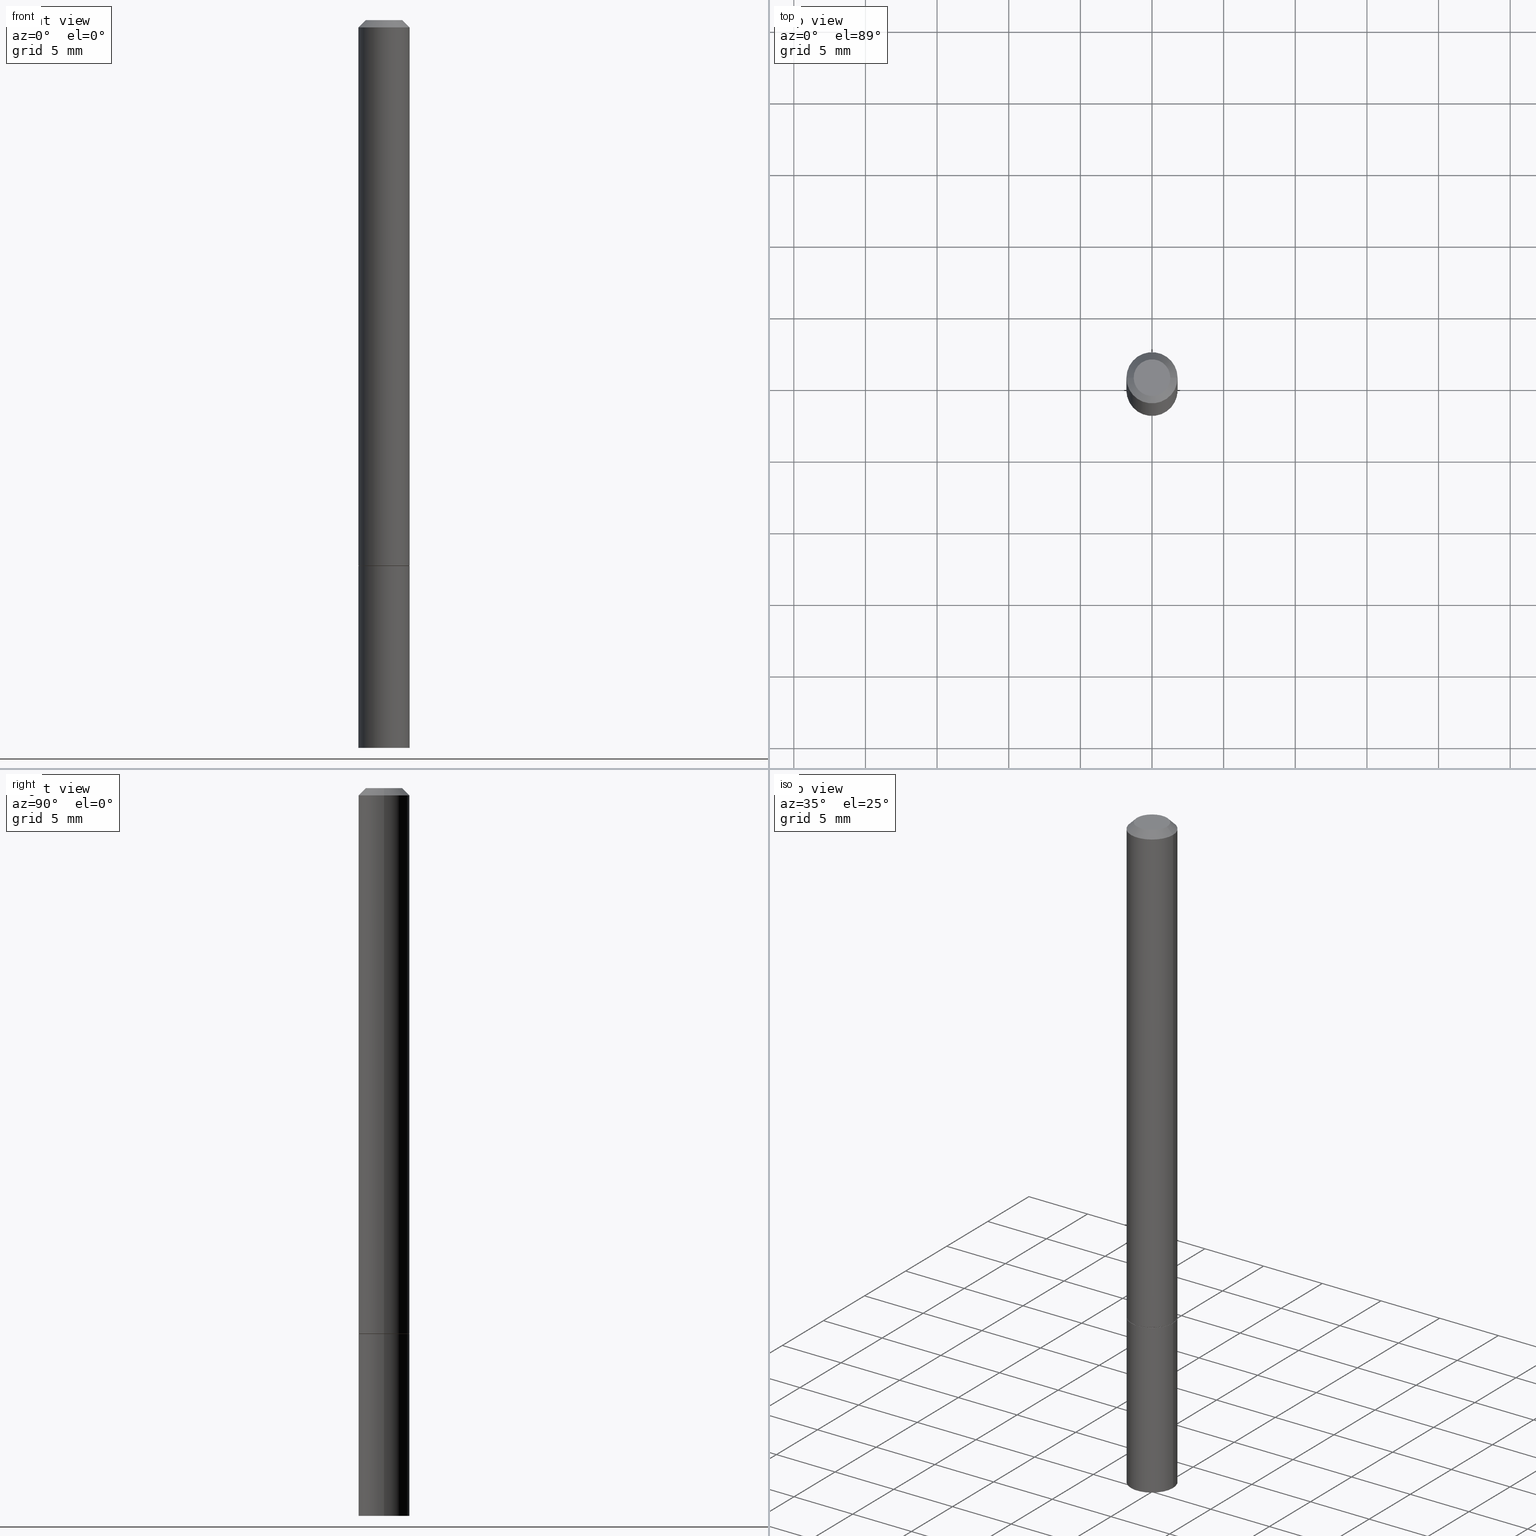
[diagram: canonical four-view strip — front | top / right | iso, engineering-drawing reading convention]
A machine part, canonical four-view strip (front | top / right | iso — engineering-drawing reading convention). The complete STEP part file that produces these views, byte-faithful:
ISO-10303-21;
HEADER;
FILE_DESCRIPTION (( 'STEP AP203' ),
    '1' );
FILE_NAME ('30199.STEP',
    '2023-03-21T20:26:09',
    ( '' ),
    ( '' ),
    'SwSTEP 2.0',
    'SolidWorks 2022',
    '' );
FILE_SCHEMA (( 'CONFIG_CONTROL_DESIGN' ));
ENDSEC;

DATA;
#1 = DIRECTION ( 'NONE',  ( -2.445468806185136597E-29, 3.491481338843145583E-15, 1.000000000000000000 ) ) ;
#2 = EDGE_CURVE ( 'NONE', #350, #111, #389, .T. ) ;
#3 = CARTESIAN_POINT ( 'NONE',  ( -0.07030000000000004301, -6.492060401444947007E-15, -2.000000000000000000 ) ) ;
#4 = ORIENTED_EDGE ( 'NONE', *, *, #230, .T. ) ;
#5 = CC_DESIGN_APPROVAL ( #132, ( #106 ) ) ;
#6 = CARTESIAN_POINT ( 'NONE',  ( 0.07030000000000000138, -5.728124284506062335E-15, -1.499999999999999778 ) ) ;
#7 = DIRECTION ( 'NONE',  ( -2.445468806185136597E-29, 3.491481338843145583E-15, 1.000000000000000000 ) ) ;
#8 = CC_DESIGN_PERSON_AND_ORGANIZATION_ASSIGNMENT ( #284, #314, ( #308 ) ) ;
#9 = PERSON_AND_ORGANIZATION ( #55, #258 ) ;
#10 = CARTESIAN_POINT ( 'NONE',  ( -0.06930000000000000049, -4.739517438034745356E-15, -1.499999999999999778 ) ) ;
#11 = PERSON_AND_ORGANIZATION ( #55, #258 ) ;
#12 = AXIS2_PLACEMENT_3D ( 'NONE', #333, #158, #385 ) ;
#13 = LOCAL_TIME ( 16, 26, 9.000000000000000000, #110 ) ;
#14 = VERTEX_POINT ( 'NONE', #361 ) ;
#15 = DATE_AND_TIME ( #207, #193 ) ;
#16 = ADVANCED_FACE ( 'NONE', ( #194 ), #152, .T. ) ;
#17 = CARTESIAN_POINT ( 'NONE',  ( 0.07030000000000000138, -4.909022762413445529E-16, 3.427952273384543137E-30 ) ) ;
#18 = ORIENTED_EDGE ( 'NONE', *, *, #338, .F. ) ;
#19 = CARTESIAN_POINT ( 'NONE',  ( 0.07030000000000000138, -5.724632803167218539E-15, -1.498999999999999444 ) ) ;
#20 = CIRCLE ( 'NONE', #33, 0.07030000000000000138 ) ;
#21 = AXIS2_PLACEMENT_3D ( 'NONE', #255, #35, #163 ) ;
#22 = ORIENTED_EDGE ( 'NONE', *, *, #138, .F. ) ;
#23 =( CONVERSION_BASED_UNIT ( 'INCH', #265 ) LENGTH_UNIT ( ) NAMED_UNIT ( #134 ) );
#24 = ORIENTED_EDGE ( 'NONE', *, *, #180, .F. ) ;
#25 = LINE ( 'NONE', #248, #319 ) ;
#26 = EDGE_LOOP ( 'NONE', ( #184, #120, #174, #325 ) ) ;
#27 = DIRECTION ( 'NONE',  ( 1.000000000000000000, -6.982962677686265133E-15, 0.000000000000000000 ) ) ;
#28 = AXIS2_PLACEMENT_3D ( 'NONE', #204, #249, #36 ) ;
#29 = DIRECTION ( 'NONE',  ( 1.000000000000000000, -6.982962677686266711E-15, 4.876176775795936353E-29 ) ) ;
#30 = CC_DESIGN_PERSON_AND_ORGANIZATION_ASSIGNMENT ( #52, #139, ( #106 ) ) ;
#31 = LINE ( 'NONE', #81, #269 ) ;
#32 = CARTESIAN_POINT ( 'NONE',  ( 4.890937612370273194E-29, -6.982962677686291165E-15, -2.000000000000000000 ) ) ;
#33 = AXIS2_PLACEMENT_3D ( 'NONE', #299, #94, #27 ) ;
#34 = VECTOR ( 'NONE', #87, 39.37007874015748143 ) ;
#35 = DIRECTION ( 'NONE',  ( -2.445468806185136597E-29, 3.491481338843145583E-15, 1.000000000000000000 ) ) ;
#36 = DIRECTION ( 'NONE',  ( 1.000000000000000000, -6.982962677686266711E-15, 4.876176775795936353E-29 ) ) ;
#37 = PRODUCT_DEFINITION_SHAPE ( 'NONE', 'NONE',  #106 ) ;
#38 = CARTESIAN_POINT ( 'NONE',  ( 1.011602273087405212E-27, -1.444299943586600005E-13, -41.36639447327388552 ) ) ;
#39 = AXIS2_PLACEMENT_3D ( 'NONE', #390, #161, #127 ) ;
#40 = VECTOR ( 'NONE', #76, 39.37007874015748854 ) ;
#41 = CARTESIAN_POINT ( 'NONE',  ( -0.07030000000000000138, -2.152268533612014652E-15, -1.498999999999999444 ) ) ;
#42 = EDGE_CURVE ( 'NONE', #188, #260, #155, .T. ) ;
#43 = DATE_AND_TIME ( #238, #74 ) ;
#44 = DIRECTION ( 'NONE',  ( -2.445468806185136597E-29, 3.491481338843145583E-15, 1.000000000000000000 ) ) ;
#45 = ORIENTED_EDGE ( 'NONE', *, *, #138, .T. ) ;
#46 = VERTEX_POINT ( 'NONE', #192 ) ;
#47 = SHAPE_DEFINITION_REPRESENTATION ( #37, #64 ) ;
#48 = CARTESIAN_POINT ( 'NONE',  ( 3.668203209277704335E-29, -5.237222008264717388E-15, -1.499999999999999778 ) ) ;
#49 = ORIENTED_EDGE ( 'NONE', *, *, #198, .F. ) ;
#50 = ADVANCED_FACE ( 'NONE', ( #195 ), #214, .F. ) ;
#51 = PERSON_AND_ORGANIZATION_ROLE ( 'creator' ) ;
#52 = PERSON_AND_ORGANIZATION ( #55, #258 ) ;
#53 = AXIS2_PLACEMENT_3D ( 'NONE', #271, #217, #29 ) ;
#54 = AXIS2_PLACEMENT_3D ( 'NONE', #225, #336, #199 ) ;
#55 = PERSON ( 'UNSPECIFIED', 'UNSPECIFIED', 'UNSPECIFIED', ('UNSPECIFIED'), ('UNSPECIFIED'), ('UNSPECIFIED') ) ;
#56 = COORDINATED_UNIVERSAL_TIME_OFFSET ( 5, 0, .BEHIND. ) ;
#57 = CARTESIAN_POINT ( 'NONE',  ( 0.07029999999999980709, -5.521226360202004844E-16, -0.02000000000000004205 ) ) ;
#58 = ADVANCED_FACE ( 'NONE', ( #99 ), #327, .T. ) ;
#59 = EDGE_LOOP ( 'NONE', ( #68, #268, #4, #386 ) ) ;
#60 = AXIS2_PLACEMENT_3D ( 'NONE', #173, #366, #108 ) ;
#61 = ORIENTED_EDGE ( 'NONE', *, *, #166, .F. ) ;
#62 = ORIENTED_EDGE ( 'NONE', *, *, #122, .T. ) ;
#63 = CARTESIAN_POINT ( 'NONE',  ( 0.07029999999999990423, -4.909022762413438627E-16, 3.427952273384538232E-30 ) ) ;
#64 = ADVANCED_BREP_SHAPE_REPRESENTATION ( '30199', ( #124, #254, #187 ), #349 ) ;
#65 = CARTESIAN_POINT ( 'NONE',  ( 4.890937612370283668E-31, -6.982962677686305168E-17, -0.02000000000000004205 ) ) ;
#66 = APPLICATION_CONTEXT ( 'configuration controlled 3d designs of mechanical parts and assemblies' ) ;
#67 = CIRCLE ( 'NONE', #178, 0.05029999999999981708 ) ;
#68 = ORIENTED_EDGE ( 'NONE', *, *, #219, .F. ) ;
#69 = DIRECTION ( 'NONE',  ( -1.000000000000000000, 6.982962677686265133E-15, 0.000000000000000000 ) ) ;
#70 = PRODUCT ( '30199', '30199', '', ( #186 ) ) ;
#71 = EDGE_LOOP ( 'NONE', ( #153, #24, #283, #330 ) ) ;
#72 = APPROVAL ( #144, 'UNSPECIFIED' ) ;
#73 = CARTESIAN_POINT ( 'NONE',  ( 0.06930000000000000049, -5.721141321828375532E-15, -1.499999999999999778 ) ) ;
#74 = LOCAL_TIME ( 16, 26, 9.000000000000000000, #112 ) ;
#75 = DIRECTION ( 'NONE',  ( 1.000000000000000000, -6.982962677686267499E-15, 0.000000000000000000 ) ) ;
#76 = DIRECTION ( 'NONE',  ( -0.9986295347545742773, 6.790662755453672411E-15, -0.05233595624293554960 ) ) ;
#77 = PLANE ( 'NONE',  #60 ) ;
#78 = CC_DESIGN_DATE_AND_TIME_ASSIGNMENT ( #345, #113, ( #106 ) ) ;
#79 = CLOSED_SHELL ( 'NONE', ( #275, #16, #165, #272, #356, #209, #89, #50 ) ) ;
#80 = AXIS2_PLACEMENT_3D ( 'NONE', #48, #293, #347 ) ;
#81 = CARTESIAN_POINT ( 'NONE',  ( -0.06930000000000000049, -4.744815892382968547E-15, -1.499999999999999778 ) ) ;
#82 = PERSON_AND_ORGANIZATION_ROLE ( 'design_owner' ) ;
#83 = CC_DESIGN_PERSON_AND_ORGANIZATION_ASSIGNMENT ( #343, #82, ( #70 ) ) ;
#84 = VERTEX_POINT ( 'NONE', #245 ) ;
#85 = COORDINATED_UNIVERSAL_TIME_OFFSET ( 5, 0, .BEHIND. ) ;
#86 = ORIENTED_EDGE ( 'NONE', *, *, #171, .F. ) ;
#87 = DIRECTION ( 'NONE',  ( -2.445468806185136877E-29, 3.491481338843145188E-15, 1.000000000000000000 ) ) ;
#88 = AXIS2_PLACEMENT_3D ( 'NONE', #339, #335, #107 ) ;
#89 = ADVANCED_FACE ( 'NONE', ( #123 ), #130, .F. ) ;
#90 = VERTEX_POINT ( 'NONE', #273 ) ;
#91 = APPROVAL_PERSON_ORGANIZATION ( #11, #132, #233 ) ;
#92 = DIRECTION ( 'NONE',  ( 1.000000000000000000, -6.982962677686265133E-15, 0.000000000000000000 ) ) ;
#93 = EDGE_CURVE ( 'NONE', #46, #304, #372, .T. ) ;
#94 = DIRECTION ( 'NONE',  ( -2.445468806185136597E-29, 3.491481338843145583E-15, 1.000000000000000000 ) ) ;
#95 = ORIENTED_EDGE ( 'NONE', *, *, #286, .F. ) ;
#96 = CARTESIAN_POINT ( 'NONE',  ( 3.668203209277704335E-29, -5.237222008264717388E-15, -1.499999999999999778 ) ) ;
#97 = CLOSED_SHELL ( 'NONE', ( #146, #151, #224, #58, #239 ) ) ;
#98 = CONICAL_SURFACE ( 'NONE', #143, 0.07029999999999980709, 0.7853981633974471688 ) ;
#99 = FACE_OUTER_BOUND ( 'NONE', #26, .T. ) ;
#100 = EDGE_CURVE ( 'NONE', #266, #111, #276, .T. ) ;
#101 = EDGE_CURVE ( 'NONE', #14, #46, #25, .T. ) ;
#102 = DIRECTION ( 'NONE',  ( 1.000000000000000000, -6.982962677686264344E-15, 0.000000000000000000 ) ) ;
#103 = LINE ( 'NONE', #282, #168 ) ;
#104 = CC_DESIGN_APPROVAL ( #298, ( #115 ) ) ;
#105 = DIRECTION ( 'NONE',  ( -0.7071067811864267805, 7.493145998869918709E-15, 0.7071067811866682540 ) ) ;
#106 = PRODUCT_DEFINITION ( 'UNKNOWN', '', #308, #129 ) ;
#107 = DIRECTION ( 'NONE',  ( 1.000000000000000000, -6.982962677686265133E-15, 0.000000000000000000 ) ) ;
#108 = DIRECTION ( 'NONE',  ( -1.000000000000000000, 6.982962677686265922E-15, -4.876176775795935793E-29 ) ) ;
#109 = VECTOR ( 'NONE', #183, 39.37007874015748143 ) ;
#110 = COORDINATED_UNIVERSAL_TIME_OFFSET ( 5, 0, .BEHIND. ) ;
#111 = VERTEX_POINT ( 'NONE', #267 ) ;
#112 = COORDINATED_UNIVERSAL_TIME_OFFSET ( 5, 0, .BEHIND. ) ;
#113 = DATE_TIME_ROLE ( 'creation_date' ) ;
#114 = CALENDAR_DATE ( 2023, 21, 3 ) ;
#115 = SECURITY_CLASSIFICATION ( '', '', #175 ) ;
#116 = PERSON_AND_ORGANIZATION_ROLE ( 'classification_officer' ) ;
#117 =( NAMED_UNIT ( * ) PLANE_ANGLE_UNIT ( ) SI_UNIT ( $, .RADIAN. ) );
#118 = ORIENTED_EDGE ( 'NONE', *, *, #160, .T. ) ;
#119 = ORIENTED_EDGE ( 'NONE', *, *, #171, .T. ) ;
#120 = ORIENTED_EDGE ( 'NONE', *, *, #294, .T. ) ;
#121 = AXIS2_PLACEMENT_3D ( 'NONE', #137, #253, #102 ) ;
#122 = EDGE_CURVE ( 'NONE', #379, #84, #244, .T. ) ;
#123 = FACE_OUTER_BOUND ( 'NONE', #323, .T. ) ;
#124 = MANIFOLD_SOLID_BREP ( 'Body-Move/Copy2[1]', #97 ) ;
#125 = EDGE_LOOP ( 'NONE', ( #328, #382 ) ) ;
#126 = CARTESIAN_POINT ( 'NONE',  ( 1.011602273087405212E-27, -1.444299943586600005E-13, -41.36639447327388552 ) ) ;
#127 = DIRECTION ( 'NONE',  ( -1.000000000000000000, 6.982962677686265922E-15, -4.876176775795935793E-29 ) ) ;
#128 = EDGE_CURVE ( 'NONE', #111, #84, #147, .T. ) ;
#129 = DESIGN_CONTEXT ( 'detailed design', #66, 'design' ) ;
#130 = PLANE ( 'NONE',  #322 ) ;
#131 = LINE ( 'NONE', #250, #213 ) ;
#132 = APPROVAL ( #259, 'UNSPECIFIED' ) ;
#133 = AXIS2_PLACEMENT_3D ( 'NONE', #278, #315, #229 ) ;
#134 = DIMENSIONAL_EXPONENTS ( 1.000000000000000000, 0.000000000000000000, 0.000000000000000000, 0.000000000000000000, 0.000000000000000000, 0.000000000000000000, 0.000000000000000000 ) ;
#135 = CIRCLE ( 'NONE', #54, 0.07030000000000000138 ) ;
#136 = FACE_OUTER_BOUND ( 'NONE', #190, .T. ) ;
#137 = CARTESIAN_POINT ( 'NONE',  ( 3.668203209277704335E-29, -5.237222008264717388E-15, -1.499999999999999778 ) ) ;
#138 = EDGE_CURVE ( 'NONE', #379, #266, #20, .T. ) ;
#139 = PERSON_AND_ORGANIZATION_ROLE ( 'creator' ) ;
#140 = DIRECTION ( 'NONE',  ( 1.000000000000000000, -6.982962677686266711E-15, 4.876176775795936353E-29 ) ) ;
#141 = ORIENTED_EDGE ( 'NONE', *, *, #230, .F. ) ;
#142 = EDGE_LOOP ( 'NONE', ( #45, #237, #141, #316 ) ) ;
#143 = AXIS2_PLACEMENT_3D ( 'NONE', #257, #280, #169 ) ;
#144 = APPROVAL_STATUS ( 'not_yet_approved' ) ;
#145 = ORIENTED_EDGE ( 'NONE', *, *, #198, .T. ) ;
#146 = ADVANCED_FACE ( 'NONE', ( #154 ), #220, .T. ) ;
#147 = CIRCLE ( 'NONE', #362, 0.07029999999999980709 ) ;
#148 = CC_DESIGN_APPROVAL ( #72, ( #308 ) ) ;
#149 = ORIENTED_EDGE ( 'NONE', *, *, #363, .T. ) ;
#150 = ORIENTED_EDGE ( 'NONE', *, *, #166, .T. ) ;
#151 = ADVANCED_FACE ( 'NONE', ( #387 ), #162, .F. ) ;
#152 = CYLINDRICAL_SURFACE ( 'NONE', #12, 0.07029999999999990423 ) ;
#153 = ORIENTED_EDGE ( 'NONE', *, *, #351, .F. ) ;
#154 = FACE_OUTER_BOUND ( 'NONE', #303, .T. ) ;
#155 = CIRCLE ( 'NONE', #301, 0.06930000000000000049 ) ;
#156 = CIRCLE ( 'NONE', #88, 0.07030000000000000138 ) ;
#157 = ORIENTED_EDGE ( 'NONE', *, *, #42, .F. ) ;
#158 = DIRECTION ( 'NONE',  ( -2.445468806185136597E-29, 3.491481338843145583E-15, 1.000000000000000000 ) ) ;
#159 = DIRECTION ( 'NONE',  ( -2.445468806185136877E-29, 3.491481338843145188E-15, 1.000000000000000000 ) ) ;
#160 = EDGE_CURVE ( 'NONE', #260, #266, #31, .T. ) ;
#161 = DIRECTION ( 'NONE',  ( 2.438088387897960049E-29, -3.491481338843145188E-15, -1.000000000000000000 ) ) ;
#162 = CONICAL_SURFACE ( 'NONE', #331, 751.2258538476867216, 1.518436449235075036 ) ;
#163 = DIRECTION ( 'NONE',  ( 1.000000000000000000, -6.982962677686264344E-15, 0.000000000000000000 ) ) ;
#164 = DIRECTION ( 'NONE',  ( -1.000000000000000000, 6.982962677686265133E-15, 0.000000000000000000 ) ) ;
#165 = ADVANCED_FACE ( 'NONE', ( #307 ), #202, .T. ) ;
#166 = EDGE_CURVE ( 'NONE', #14, #304, #228, .T. ) ;
#167 = FACE_OUTER_BOUND ( 'NONE', #262, .T. ) ;
#168 = VECTOR ( 'NONE', #340, 39.37007874015748143 ) ;
#169 = DIRECTION ( 'NONE',  ( -1.000000000000000000, 6.982962677686267499E-15, 0.000000000000000000 ) ) ;
#170 = ORIENTED_EDGE ( 'NONE', *, *, #211, .T. ) ;
#171 = EDGE_CURVE ( 'NONE', #212, #90, #156, .T. ) ;
#172 = DATE_TIME_ROLE ( 'classification_date' ) ;
#173 = CARTESIAN_POINT ( 'NONE',  ( 4.909022762413812349E-16, 0.07029999999999476945, -1.500000000000000222 ) ) ;
#174 = ORIENTED_EDGE ( 'NONE', *, *, #388, .T. ) ;
#175 = SECURITY_CLASSIFICATION_LEVEL ( 'unclassified' ) ;
#176 = CYLINDRICAL_SURFACE ( 'NONE', #320, 0.07029999999999990423 ) ;
#177 = ORIENTED_EDGE ( 'NONE', *, *, #388, .F. ) ;
#178 = AXIS2_PLACEMENT_3D ( 'NONE', #201, #7, #140 ) ;
#179 = CARTESIAN_POINT ( 'NONE',  ( -0.05029999999999981708, 3.861578360760490633E-16, -2.578333688018695256E-30 ) ) ;
#180 = EDGE_CURVE ( 'NONE', #350, #357, #67, .T. ) ;
#181 = APPLICATION_CONTEXT ( 'configuration controlled 3d designs of mechanical parts and assemblies' ) ;
#182 = ORIENTED_EDGE ( 'NONE', *, *, #338, .T. ) ;
#183 = DIRECTION ( 'NONE',  ( 0.7071067811865466846, -7.319954787623252890E-15, -0.7071067811865483499 ) ) ;
#184 = ORIENTED_EDGE ( 'NONE', *, *, #211, .F. ) ;
#185 = AXIS2_PLACEMENT_3D ( 'NONE', #302, #358, #364 ) ;
#186 = MECHANICAL_CONTEXT ( 'NONE', #181, 'mechanical' ) ;
#187 = AXIS2_PLACEMENT_3D ( 'NONE', #210, #232, #377 ) ;
#188 = VERTEX_POINT ( 'NONE', #73 ) ;
#189 = CARTESIAN_POINT ( 'NONE',  ( 3.668203209277704335E-29, -5.237222008264717388E-15, -1.499999999999999778 ) ) ;
#190 = EDGE_LOOP ( 'NONE', ( #240, #118, #22, #18 ) ) ;
#191 = DIRECTION ( 'NONE',  ( 1.000000000000000000, -6.982962677686264344E-15, 0.000000000000000000 ) ) ;
#192 = CARTESIAN_POINT ( 'NONE',  ( 0.07030000000000004301, -7.465255686929629633E-15, -2.000000000000000000 ) ) ;
#193 = LOCAL_TIME ( 16, 26, 9.000000000000000000, #85 ) ;
#194 = FACE_OUTER_BOUND ( 'NONE', #142, .T. ) ;
#195 = FACE_OUTER_BOUND ( 'NONE', #125, .T. ) ;
#196 = FACE_OUTER_BOUND ( 'NONE', #355, .T. ) ;
#197 = APPROVAL_PERSON_ORGANIZATION ( #9, #298, #205 ) ;
#198 = EDGE_CURVE ( 'NONE', #260, #188, #369, .T. ) ;
#199 = DIRECTION ( 'NONE',  ( 1.000000000000000000, -6.982962677686265133E-15, 0.000000000000000000 ) ) ;
#200 = DIRECTION ( 'NONE',  ( -2.445468806185136597E-29, 3.491481338843145583E-15, 1.000000000000000000 ) ) ;
#201 = CARTESIAN_POINT ( 'NONE',  ( 0.000000000000000000, 0.000000000000000000, 0.000000000000000000 ) ) ;
#202 = CONICAL_SURFACE ( 'NONE', #133, 0.07029999999999980709, 0.7853981633974471688 ) ;
#203 = APPROVAL_DATE_TIME ( #317, #72 ) ;
#204 = CARTESIAN_POINT ( 'NONE',  ( 0.000000000000000000, 0.000000000000000000, 0.000000000000000000 ) ) ;
#205 = APPROVAL_ROLE ( '' ) ;
#206 = CARTESIAN_POINT ( 'NONE',  ( 0.05029999999999981708, -4.486028426540536026E-16, 2.796359263189735848E-30 ) ) ;
#207 = CALENDAR_DATE ( 2023, 21, 3 ) ;
#208 = CIRCLE ( 'NONE', #28, 0.05029999999999981708 ) ;
#209 = ADVANCED_FACE ( 'NONE', ( #312 ), #242, .T. ) ;
#210 = CARTESIAN_POINT ( 'NONE',  ( 0.000000000000000000, 0.000000000000000000, 0.000000000000000000 ) ) ;
#211 = EDGE_CURVE ( 'NONE', #304, #90, #103, .T. ) ;
#212 = VERTEX_POINT ( 'NONE', #6 ) ;
#213 = VECTOR ( 'NONE', #368, 39.37007874015748143 ) ;
#214 = PLANE ( 'NONE',  #39 ) ;
#215 = ORIENTED_EDGE ( 'NONE', *, *, #101, .T. ) ;
#216 = DIRECTION ( 'NONE',  ( 1.000000000000000000, -6.982962677686267499E-15, 0.000000000000000000 ) ) ;
#217 = DIRECTION ( 'NONE',  ( -2.445468806185136597E-29, 3.491481338843145583E-15, 1.000000000000000000 ) ) ;
#218 = ORIENTED_EDGE ( 'NONE', *, *, #93, .T. ) ;
#219 = EDGE_CURVE ( 'NONE', #357, #350, #208, .T. ) ;
#220 = CYLINDRICAL_SURFACE ( 'NONE', #53, 0.07030000000000000138 ) ;
#221 = CC_DESIGN_SECURITY_CLASSIFICATION ( #115, ( #308 ) ) ;
#222 = DIRECTION ( 'NONE',  ( 1.000000000000000000, -6.982962677686265922E-15, 4.876176775795935793E-29 ) ) ;
#223 = DIRECTION ( 'NONE',  ( 1.000000000000000000, -6.982962677686265133E-15, 0.000000000000000000 ) ) ;
#224 = ADVANCED_FACE ( 'NONE', ( #167 ), #373, .F. ) ;
#225 = CARTESIAN_POINT ( 'NONE',  ( 4.890937612370273194E-29, -6.982962677686291165E-15, -2.000000000000000000 ) ) ;
#226 = APPROVAL_PERSON_ORGANIZATION ( #376, #72, #353 ) ;
#227 = DIRECTION ( 'NONE',  ( 2.445468806185136597E-29, -3.491481338843145583E-15, -1.000000000000000000 ) ) ;
#228 = LINE ( 'NONE', #309, #40 ) ;
#229 = DIRECTION ( 'NONE',  ( -1.000000000000000000, 6.982962677686267499E-15, 0.000000000000000000 ) ) ;
#230 = EDGE_CURVE ( 'NONE', #84, #111, #289, .T. ) ;
#231 = DATE_AND_TIME ( #290, #13 ) ;
#232 = DIRECTION ( 'NONE',  ( 0.000000000000000000, 0.000000000000000000, 1.000000000000000000 ) ) ;
#233 = APPROVAL_ROLE ( '' ) ;
#234 = DIRECTION ( 'NONE',  ( -2.445468806185136597E-29, 3.491481338843145583E-15, 1.000000000000000000 ) ) ;
#235 = LOCAL_TIME ( 16, 26, 9.000000000000000000, #56 ) ;
#236 = PERSON_AND_ORGANIZATION ( #55, #258 ) ;
#237 = ORIENTED_EDGE ( 'NONE', *, *, #100, .T. ) ;
#238 = CALENDAR_DATE ( 2023, 21, 3 ) ;
#239 = ADVANCED_FACE ( 'NONE', ( #196 ), #77, .F. ) ;
#240 = ORIENTED_EDGE ( 'NONE', *, *, #42, .T. ) ;
#241 = EDGE_LOOP ( 'NONE', ( #360, #295, #62, #383 ) ) ;
#242 = CONICAL_SURFACE ( 'NONE', #281, 0.06930000000000000049, 0.7853981633972775267 ) ;
#243 = DIRECTION ( 'NONE',  ( -2.445468806185136597E-29, 3.491481338843145583E-15, 1.000000000000000000 ) ) ;
#244 = LINE ( 'NONE', #63, #348 ) ;
#245 = CARTESIAN_POINT ( 'NONE',  ( 0.07029999999999980709, -5.521226360202004844E-16, -0.02000000000000004205 ) ) ;
#246 = DIRECTION ( 'NONE',  ( -0.7071067811865466846, 2.468850131082247989E-15, -0.7071067811865483499 ) ) ;
#247 = AXIS2_PLACEMENT_3D ( 'NONE', #38, #227, #164 ) ;
#248 = CARTESIAN_POINT ( 'NONE',  ( 2.095173301790458016E-19, -6.970099128614893921E-15, -1.996315733116402757 ) ) ;
#249 = DIRECTION ( 'NONE',  ( -2.445468806185136597E-29, 3.491481338843145583E-15, 1.000000000000000000 ) ) ;
#250 = CARTESIAN_POINT ( 'NONE',  ( 0.06930000000000000049, -5.721141321828375532E-15, -1.499999999999999778 ) ) ;
#251 = UNCERTAINTY_MEASURE_WITH_UNIT (LENGTH_MEASURE( 1.000000000000000082E-05 ), #23, 'distance_accuracy_value', 'NONE');
#252 = AXIS2_PLACEMENT_3D ( 'NONE', #370, #200, #75 ) ;
#253 = DIRECTION ( 'NONE',  ( -2.445468806185136597E-29, 3.491481338843145583E-15, 1.000000000000000000 ) ) ;
#254 = MANIFOLD_SOLID_BREP ( 'Body-Move/Copy2[2]', #79 ) ;
#255 = CARTESIAN_POINT ( 'NONE',  ( 3.668203209277704335E-29, -5.237222008264717388E-15, -1.499999999999999778 ) ) ;
#256 = APPROVAL_STATUS ( 'not_yet_approved' ) ;
#257 = CARTESIAN_POINT ( 'NONE',  ( 4.890937612370283668E-31, -6.982962677686305168E-17, -0.02000000000000004205 ) ) ;
#258 = ORGANIZATION ( 'UNSPECIFIED', 'UNSPECIFIED', '' ) ;
#259 = APPROVAL_STATUS ( 'not_yet_approved' ) ;
#260 = VERTEX_POINT ( 'NONE', #10 ) ;
#261 = PERSON_AND_ORGANIZATION ( #55, #258 ) ;
#262 = EDGE_LOOP ( 'NONE', ( #375, #150, #263 ) ) ;
#263 = ORIENTED_EDGE ( 'NONE', *, *, #93, .F. ) ;
#264 = CIRCLE ( 'NONE', #277, 0.07030000000000000138 ) ;
#265 = LENGTH_MEASURE_WITH_UNIT ( LENGTH_MEASURE( 0.02539999999999999897 ), #291 );
#266 = VERTEX_POINT ( 'NONE', #41 ) ;
#267 = CARTESIAN_POINT ( 'NONE',  ( -0.07029999999999980709, 4.210726494644801207E-16, -0.02000000000000004205 ) ) ;
#268 = ORIENTED_EDGE ( 'NONE', *, *, #351, .T. ) ;
#269 = VECTOR ( 'NONE', #105, 39.37007874015748143 ) ;
#270 = LOCAL_TIME ( 16, 26, 9.000000000000000000, #380 ) ;
#271 = CARTESIAN_POINT ( 'NONE',  ( 0.000000000000000000, 0.000000000000000000, 0.000000000000000000 ) ) ;
#272 = ADVANCED_FACE ( 'NONE', ( #310 ), #98, .T. ) ;
#273 = CARTESIAN_POINT ( 'NONE',  ( -0.07030000000000000138, -5.610580799736154033E-15, -1.499999999999999778 ) ) ;
#274 = CARTESIAN_POINT ( 'NONE',  ( -0.07029999999999980709, 4.210726494644801207E-16, -0.02000000000000004205 ) ) ;
#275 = ADVANCED_FACE ( 'NONE', ( #136 ), #378, .T. ) ;
#276 = LINE ( 'NONE', #324, #313 ) ;
#277 = AXIS2_PLACEMENT_3D ( 'NONE', #279, #1, #223 ) ;
#278 = CARTESIAN_POINT ( 'NONE',  ( 4.890937612370283668E-31, -6.982962677686305168E-17, -0.02000000000000004205 ) ) ;
#279 = CARTESIAN_POINT ( 'NONE',  ( 3.665757740471518171E-29, -5.233730526925873592E-15, -1.498999999999999444 ) ) ;
#280 = DIRECTION ( 'NONE',  ( 2.445468806185136597E-29, -3.491481338843145583E-15, -1.000000000000000000 ) ) ;
#281 = AXIS2_PLACEMENT_3D ( 'NONE', #341, #44, #285 ) ;
#282 = CARTESIAN_POINT ( 'NONE',  ( -0.07030000000000000138, 4.995115432393504404E-16, -3.458011368449198869E-30 ) ) ;
#283 = ORIENTED_EDGE ( 'NONE', *, *, #2, .T. ) ;
#284 = PERSON_AND_ORGANIZATION ( #55, #258 ) ;
#285 = DIRECTION ( 'NONE',  ( 1.000000000000000000, -6.982962677686264344E-15, 0.000000000000000000 ) ) ;
#286 = EDGE_CURVE ( 'NONE', #266, #379, #264, .T. ) ;
#287 = APPLICATION_PROTOCOL_DEFINITION ( 'international standard', 'config_control_design', 1994, #66 ) ;
#288 = AXIS2_PLACEMENT_3D ( 'NONE', #32, #297, #92 ) ;
#289 = CIRCLE ( 'NONE', #252, 0.07029999999999980709 ) ;
#290 = CALENDAR_DATE ( 2023, 21, 3 ) ;
#291 =( LENGTH_UNIT ( ) NAMED_UNIT ( * ) SI_UNIT ( $, .METRE. ) );
#292 = DIRECTION ( 'NONE',  ( 1.000000000000000000, -6.982962677686266711E-15, 4.876176775795935793E-29 ) ) ;
#293 = DIRECTION ( 'NONE',  ( -2.445468806185136597E-29, 3.491481338843145583E-15, 1.000000000000000000 ) ) ;
#294 = EDGE_CURVE ( 'NONE', #304, #46, #135, .T. ) ;
#295 = ORIENTED_EDGE ( 'NONE', *, *, #286, .T. ) ;
#296 = ORIENTED_EDGE ( 'NONE', *, *, #294, .F. ) ;
#297 = DIRECTION ( 'NONE',  ( -2.445468806185136597E-29, 3.491481338843145583E-15, 1.000000000000000000 ) ) ;
#298 = APPROVAL ( #256, 'UNSPECIFIED' ) ;
#299 = CARTESIAN_POINT ( 'NONE',  ( 3.665757740471518171E-29, -5.233730526925873592E-15, -1.498999999999999444 ) ) ;
#300 = ORIENTED_EDGE ( 'NONE', *, *, #160, .F. ) ;
#301 = AXIS2_PLACEMENT_3D ( 'NONE', #189, #243, #191 ) ;
#302 = CARTESIAN_POINT ( 'NONE',  ( 0.000000000000000000, 0.000000000000000000, 0.000000000000000000 ) ) ;
#303 = EDGE_LOOP ( 'NONE', ( #218, #170, #86, #177 ) ) ;
#304 = VERTEX_POINT ( 'NONE', #3 ) ;
#305 = DIRECTION ( 'NONE',  ( -2.438088387897960049E-29, 3.491481338843145188E-15, 1.000000000000000000 ) ) ;
#306 = VECTOR ( 'NONE', #246, 39.37007874015748143 ) ;
#307 = FACE_OUTER_BOUND ( 'NONE', #59, .T. ) ;
#308 = PRODUCT_DEFINITION_FORMATION_WITH_SPECIFIED_SOURCE ( 'ANY', '', #70, .NOT_KNOWN. ) ;
#309 = CARTESIAN_POINT ( 'NONE',  ( -2.095173300814072201E-19, -6.970099128614893921E-15, -1.996315733116402757 ) ) ;
#310 = FACE_OUTER_BOUND ( 'NONE', #71, .T. ) ;
#311 = PRODUCT_RELATED_PRODUCT_CATEGORY ( 'detail', '', ( #70 ) ) ;
#312 = FACE_OUTER_BOUND ( 'NONE', #329, .T. ) ;
#313 = VECTOR ( 'NONE', #159, 39.37007874015748143 ) ;
#314 = PERSON_AND_ORGANIZATION_ROLE ( 'design_supplier' ) ;
#315 = DIRECTION ( 'NONE',  ( 2.445468806185136597E-29, -3.491481338843145583E-15, -1.000000000000000000 ) ) ;
#316 = ORIENTED_EDGE ( 'NONE', *, *, #122, .F. ) ;
#317 = DATE_AND_TIME ( #114, #270 ) ;
#318 = APPROVAL_DATE_TIME ( #15, #132 ) ;
#319 = VECTOR ( 'NONE', #365, 39.37007874015748854 ) ;
#320 = AXIS2_PLACEMENT_3D ( 'NONE', #381, #234, #292 ) ;
#321 =( NAMED_UNIT ( * ) SI_UNIT ( $, .STERADIAN. ) SOLID_ANGLE_UNIT ( ) );
#322 = AXIS2_PLACEMENT_3D ( 'NONE', #96, #305, #222 ) ;
#323 = EDGE_LOOP ( 'NONE', ( #157, #49 ) ) ;
#324 = CARTESIAN_POINT ( 'NONE',  ( -0.07029999999999990423, 4.995115432393497502E-16, -3.458011368449193965E-30 ) ) ;
#325 = ORIENTED_EDGE ( 'NONE', *, *, #363, .F. ) ;
#326 = CC_DESIGN_DATE_AND_TIME_ASSIGNMENT ( #43, #172, ( #115 ) ) ;
#327 = CYLINDRICAL_SURFACE ( 'NONE', #185, 0.07030000000000000138 ) ;
#328 = ORIENTED_EDGE ( 'NONE', *, *, #180, .T. ) ;
#329 = EDGE_LOOP ( 'NONE', ( #300, #145, #182, #95 ) ) ;
#330 = ORIENTED_EDGE ( 'NONE', *, *, #128, .T. ) ;
#331 = AXIS2_PLACEMENT_3D ( 'NONE', #126, #332, #69 ) ;
#332 = DIRECTION ( 'NONE',  ( 2.445468806185136597E-29, -3.491481338843145583E-15, -1.000000000000000000 ) ) ;
#333 = CARTESIAN_POINT ( 'NONE',  ( 0.000000000000000000, 0.000000000000000000, 0.000000000000000000 ) ) ;
#334 = CC_DESIGN_PERSON_AND_ORGANIZATION_ASSIGNMENT ( #261, #116, ( #115 ) ) ;
#335 = DIRECTION ( 'NONE',  ( -2.445468806185136597E-29, 3.491481338843145583E-15, 1.000000000000000000 ) ) ;
#336 = DIRECTION ( 'NONE',  ( -2.445468806185136597E-29, 3.491481338843145583E-15, 1.000000000000000000 ) ) ;
#337 = CIRCLE ( 'NONE', #80, 0.07030000000000000138 ) ;
#338 = EDGE_CURVE ( 'NONE', #188, #379, #131, .T. ) ;
#339 = CARTESIAN_POINT ( 'NONE',  ( 3.668203209277704335E-29, -5.237222008264717388E-15, -1.499999999999999778 ) ) ;
#340 = DIRECTION ( 'NONE',  ( -2.445468806185136877E-29, 3.491481338843145188E-15, 1.000000000000000000 ) ) ;
#341 = CARTESIAN_POINT ( 'NONE',  ( 3.668203209277704335E-29, -5.237222008264717388E-15, -1.499999999999999778 ) ) ;
#342 = APPROVAL_DATE_TIME ( #231, #298 ) ;
#343 = PERSON_AND_ORGANIZATION ( #55, #258 ) ;
#344 = EDGE_LOOP ( 'NONE', ( #61, #215, #296 ) ) ;
#345 = DATE_AND_TIME ( #371, #235 ) ;
#346 = LINE ( 'NONE', #57, #109 ) ;
#347 = DIRECTION ( 'NONE',  ( 1.000000000000000000, -6.982962677686265133E-15, 0.000000000000000000 ) ) ;
#348 = VECTOR ( 'NONE', #359, 39.37007874015748143 ) ;
#349 =( GEOMETRIC_REPRESENTATION_CONTEXT ( 3 ) GLOBAL_UNCERTAINTY_ASSIGNED_CONTEXT ( ( #251 ) ) GLOBAL_UNIT_ASSIGNED_CONTEXT ( ( #23, #117, #321 ) ) REPRESENTATION_CONTEXT ( 'NONE', 'WORKASPACE' ) );
#350 = VERTEX_POINT ( 'NONE', #179 ) ;
#351 = EDGE_CURVE ( 'NONE', #357, #84, #346, .T. ) ;
#352 = APPLICATION_PROTOCOL_DEFINITION ( 'international standard', 'config_control_design', 1994, #181 ) ;
#353 = APPROVAL_ROLE ( '' ) ;
#354 = FACE_OUTER_BOUND ( 'NONE', #241, .T. ) ;
#355 = EDGE_LOOP ( 'NONE', ( #119, #149 ) ) ;
#356 = ADVANCED_FACE ( 'NONE', ( #354 ), #176, .T. ) ;
#357 = VERTEX_POINT ( 'NONE', #206 ) ;
#358 = DIRECTION ( 'NONE',  ( -2.445468806185136597E-29, 3.491481338843145583E-15, 1.000000000000000000 ) ) ;
#359 = DIRECTION ( 'NONE',  ( -2.445468806185136877E-29, 3.491481338843145188E-15, 1.000000000000000000 ) ) ;
#360 = ORIENTED_EDGE ( 'NONE', *, *, #100, .F. ) ;
#361 = CARTESIAN_POINT ( 'NONE',  ( 4.882074157802437776E-29, -6.969889611284763535E-15, -1.996315733116402757 ) ) ;
#362 = AXIS2_PLACEMENT_3D ( 'NONE', #65, #384, #216 ) ;
#363 = EDGE_CURVE ( 'NONE', #90, #212, #337, .T. ) ;
#364 = DIRECTION ( 'NONE',  ( 1.000000000000000000, -6.982962677686266711E-15, 4.876176775795936353E-29 ) ) ;
#365 = DIRECTION ( 'NONE',  ( 0.9986295347545742773, -7.033825938271993967E-15, -0.05233595624293554960 ) ) ;
#366 = DIRECTION ( 'NONE',  ( 2.438088387897960049E-29, -3.491481338843145188E-15, -1.000000000000000000 ) ) ;
#367 = CC_DESIGN_PERSON_AND_ORGANIZATION_ASSIGNMENT ( #236, #51, ( #308 ) ) ;
#368 = DIRECTION ( 'NONE',  ( 0.7071067811864267805, -2.468850131080992517E-15, 0.7071067811866682540 ) ) ;
#369 = CIRCLE ( 'NONE', #21, 0.06930000000000000049 ) ;
#370 = CARTESIAN_POINT ( 'NONE',  ( 4.890937612370283668E-31, -6.982962677686305168E-17, -0.02000000000000004205 ) ) ;
#371 = CALENDAR_DATE ( 2023, 21, 3 ) ;
#372 = CIRCLE ( 'NONE', #288, 0.07030000000000000138 ) ;
#373 = CONICAL_SURFACE ( 'NONE', #247, 751.2258538476867216, 1.518436449235075036 ) ;
#374 = LINE ( 'NONE', #17, #34 ) ;
#375 = ORIENTED_EDGE ( 'NONE', *, *, #101, .F. ) ;
#376 = PERSON_AND_ORGANIZATION ( #55, #258 ) ;
#377 = DIRECTION ( 'NONE',  ( 1.000000000000000000, 0.000000000000000000, 0.000000000000000000 ) ) ;
#378 = CONICAL_SURFACE ( 'NONE', #121, 0.06930000000000000049, 0.7853981633972775267 ) ;
#379 = VERTEX_POINT ( 'NONE', #19 ) ;
#380 = COORDINATED_UNIVERSAL_TIME_OFFSET ( 5, 0, .BEHIND. ) ;
#381 = CARTESIAN_POINT ( 'NONE',  ( 0.000000000000000000, 0.000000000000000000, 0.000000000000000000 ) ) ;
#382 = ORIENTED_EDGE ( 'NONE', *, *, #219, .T. ) ;
#383 = ORIENTED_EDGE ( 'NONE', *, *, #128, .F. ) ;
#384 = DIRECTION ( 'NONE',  ( -2.445468806185136597E-29, 3.491481338843145583E-15, 1.000000000000000000 ) ) ;
#385 = DIRECTION ( 'NONE',  ( 1.000000000000000000, -6.982962677686266711E-15, 4.876176775795935793E-29 ) ) ;
#386 = ORIENTED_EDGE ( 'NONE', *, *, #2, .F. ) ;
#387 = FACE_OUTER_BOUND ( 'NONE', #344, .T. ) ;
#388 = EDGE_CURVE ( 'NONE', #46, #212, #374, .T. ) ;
#389 = LINE ( 'NONE', #274, #306 ) ;
#390 = CARTESIAN_POINT ( 'NONE',  ( 3.512430226876179072E-16, 0.05029999999999981708, -1.756215113438095946E-16 ) ) ;
ENDSEC;
END-ISO-10303-21;
